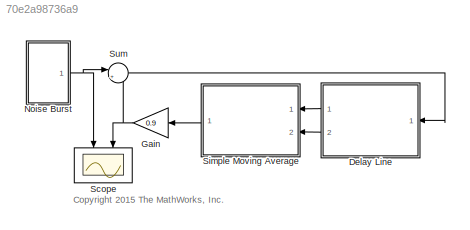
MODEL slx_70e2a98736a9
KIND model
CONFIG AbsTol = auto
CONFIG EnableMultiTasking = on
CONFIG FixedStep = 0.02
CONFIG MaxStep = auto
CONFIG MinStep = auto
CONFIG RelTol = 1e-3
CONFIG SampleTimeConstraint = Unconstrained
CONFIG Solver = FixedStepDiscrete
CONFIG SolverName = FixedStepDiscrete
CONFIG StartTime = 0.0
CONFIG StopTime = 10
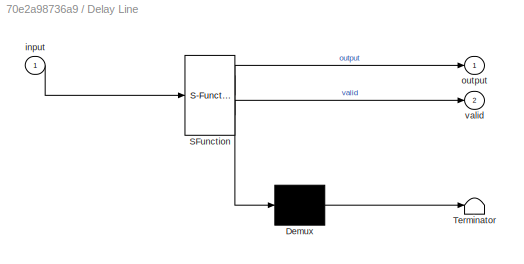
BLOCK [SubSystem] Delay Line
  ErrorFcn = Stateflow.Translate.translate
  PermitHierarchicalResolution = ExplicitOnly
  Ports = [1, 2]
  RequestExecContextInheritance = off
  SFBlockType = Chart
  TreatAsAtomicUnit = on
  Variant = off
BLOCK [Demux] Delay Line/ Demux 
  Outputs = 1
  Ports = [1, 1]
BLOCK [S-Function] Delay Line/ SFunction 
  EnableBusSupport = off
  FunctionName = sf_sfun
  PortCounts = [1 3]
  Ports = [1, 3]
  SFcnIsStateOwnerBlock = off
  SFunctionDeploymentMode = off
  Tag = Stateflow S-Function sf_karplus_strong 1
BLOCK [Terminator] Delay Line/ Terminator 
BLOCK [Outport] Delay Line/ valid
  IconDisplay = Port number
  Port = 2
BLOCK [Inport] Delay Line/input
  IconDisplay = Port number
BLOCK [Outport] Delay Line/output
  IconDisplay = Port number
BLOCK [Gain] Gain
  Gain = 0.9
  OutDataTypeStr = Inherit: Inherit via internal rule
  ParamDataTypeStr = Inherit: Inherit via internal rule
  SaturateOnIntegerOverflow = off
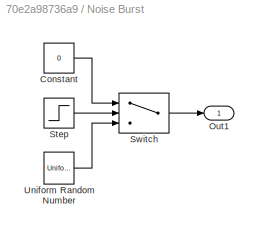
BLOCK [SubSystem] Noise Burst
  Ports = [0, 1]
  RequestExecContextInheritance = off
  Variant = off
BLOCK [Constant] Noise Burst/Constant
  Value = 0
BLOCK [Outport] Noise Burst/Out1
  IconDisplay = Port number
BLOCK [Step] Noise Burst/Step
  SampleTime = 0
BLOCK [Switch] Noise Burst/Switch
  Criteria = u2 > Threshold
  InputSameDT = off
  SaturateOnIntegerOverflow = off
BLOCK [UniformRandomNumber] Noise Burst/Uniform Random Number
  SampleTime = 0.02
BLOCK [Scope] Scope
  NumInputPorts = 2
  Ports = [2]
  ScopeSpecificationString = Simulink.scopes.TimeScopeBlockCfg('CurrentConfiguration', extmgr.ConfigurationSet(extmgr.Configuration('Core','General UI',true),extmgr.Configuration('Core','Source UI',true),extmgr.Configuration('Sources','WiredSimulink',true),extmgr.Configuration('Visuals','Time Domain',true,'SerializedDisplays',{struct('MinYLimReal','-1.23044','MaxYLimReal','1.22791','YLabelReal','','MinYLimMag','0','MaxYLimMag...<+1407ch>
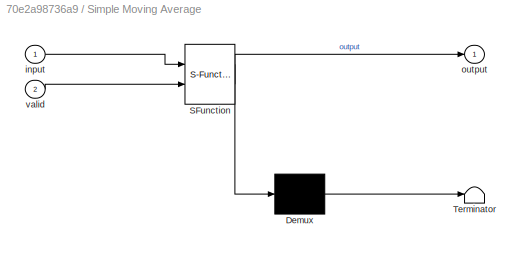
BLOCK [SubSystem] Simple Moving Average
  ErrorFcn = Stateflow.Translate.translate
  PermitHierarchicalResolution = ExplicitOnly
  Ports = [2, 1]
  RequestExecContextInheritance = off
  SFBlockType = Chart
  TreatAsAtomicUnit = on
  Variant = off
BLOCK [Demux] Simple Moving Average/ Demux 
  Outputs = 1
  Ports = [1, 1]
BLOCK [S-Function] Simple Moving Average/ SFunction 
  EnableBusSupport = off
  FunctionName = sf_sfun
  PortCounts = [2 2]
  Ports = [2, 2]
  SFcnIsStateOwnerBlock = off
  SFunctionDeploymentMode = off
  Tag = Stateflow S-Function sf_karplus_strong 3
BLOCK [Terminator] Simple Moving Average/ Terminator 
BLOCK [Inport] Simple Moving Average/input
  IconDisplay = Port number
BLOCK [Outport] Simple Moving Average/output
  IconDisplay = Port number
BLOCK [Inport] Simple Moving Average/valid
  IconDisplay = Port number
  Port = 2
BLOCK [Sum] Sum
  IconShape = round
  InputSameDT = off
  Inputs = |++
  OutDataTypeStr = Inherit: Inherit via internal rule
  Ports = [2, 1]
  SaturateOnIntegerOverflow = off
ANNOTATION (root): <copyright redacted>
LINE Delay Line:1 -> Simple Moving Average:1
LINE Delay Line:2 -> Simple Moving Average:2
NET Gain:1 -> Scope:2, Sum:2
LINE Noise Burst/Constant:1 -> Noise Burst/Switch:1
LINE Noise Burst/Step:1 -> Noise Burst/Switch:2
LINE Noise Burst/Switch:1 -> Noise Burst/Out1:1
LINE Noise Burst/Uniform Random Number:1 -> Noise Burst/Switch:3
NET Noise Burst:1 -> Scope:1, Sum:1
LINE Simple Moving Average:1 -> Gain:1
LINE Sum:1 -> Delay Line:1
note: NET lines group one-source signal fan-out (src -> all destinations, sorted); 1:1 wires keep LINE
CHART Delay Line states=4 transitions=9
  STATE_LABEL 'Init\noutput = 0;\nindex = uint8(1);\nvalues = [input zeros(1,DELAY-1)];'
  STATE_LABEL 'y = next_index'
  STATE_LABEL '{y = index + uint8(1);}'
  STATE_LABEL '[y > DELAY]'
  STATE_LABEL '{y = uint8(1);}'
  STATE_LABEL 'UnderDelayValues\nindex = next_index();\nvalues(index) = input;'
  STATE_LABEL 'ShiftWindow\noutput = values(next_index);\nindex = next_index();\nvalues(index) = input;'
CHART Simple Moving Average states=5 transitions=3
  STATE_LABEL 'PropagateAverageToOutput'
  STATE_LABEL 'SecondValid\noutput = average;'
  STATE_LABEL 'Init\nprevious = 0;\n'
  STATE_LABEL 'FirstValid'
  STATE_LABEL '[valid]'
  STATE_LABEL '[valid]'
  STATE_LABEL 'SecondValid\noutput = average;'
  STATE_LABEL 'Init\nprevious = 0;\n'
  STATE_LABEL 'FirstValid'
  STATE_LABEL 'ComputeAverage\naverage = (input + previous)/2;\nprevious = input;'
